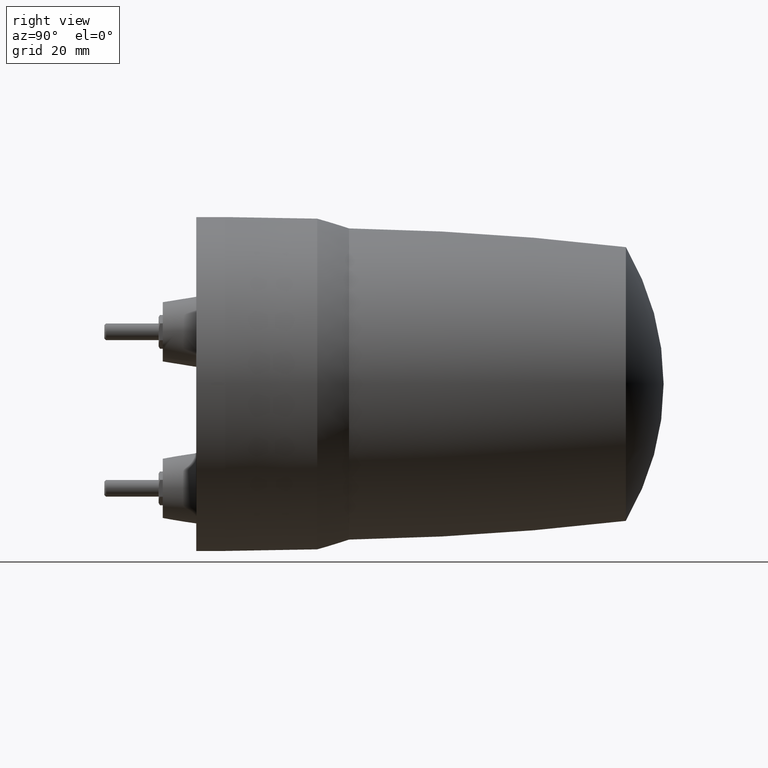
[diagram: clean part render]
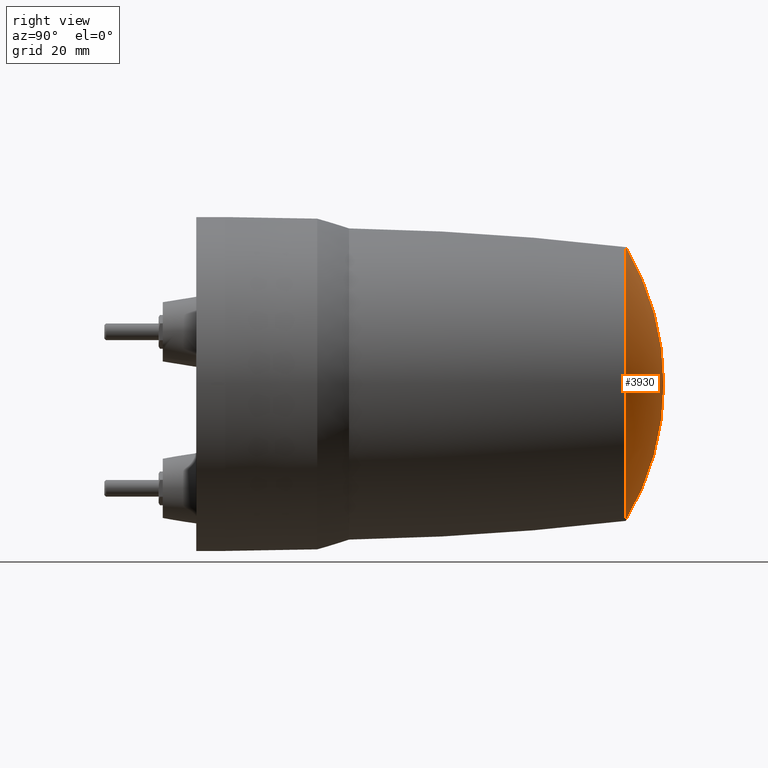
[diagram: same view with one face highlighted and labeled with its STEP entity id]
A machine part, right view. The second image highlights one B-rep face of the part: STEP entity #3930.
In plain terms, the highlighted spherical surface has radius 64 mm.
Its self-contained STEP definition (entity closure, byte-faithful):
#42 = AXIS2_PLACEMENT_3D ( 'NONE', #614, #2441, #958 ) ;
#224 = ORIENTED_EDGE ( 'NONE', *, *, #1370, .F. ) ;
#229 = VERTEX_POINT ( 'NONE', #819 ) ;
#331 = VERTEX_POINT ( 'NONE', #3464 ) ;
#380 = EDGE_LOOP ( 'NONE', ( #224, #2290, #4015, #2267 ) ) ;
#422 = FACE_OUTER_BOUND ( 'NONE', #380, .T. ) ;
#489 = CARTESIAN_POINT ( 'NONE',  ( -5.000000000000000105E-09, 111.9574960022395942, 0.000000000000000000 ) ) ;
#550 = CIRCLE ( 'NONE', #1085, 32.79746382458339582 ) ;
#611 = DIRECTION ( 'NONE',  ( 0.9950041652811341120, -4.231360047240093586E-16, 0.09983341661584822779 ) ) ;
#614 = CARTESIAN_POINT ( 'NONE',  ( -4.111966618341213830E-09, 56.99999999659785743, -2.616512756758935325E-10 ) ) ;
#676 = DIRECTION ( 'NONE',  ( 0.000000000000000000, -1.000000000000000000, 0.000000000000000000 ) ) ;
#819 = CARTESIAN_POINT ( 'NONE',  ( -4.111939281693475977E-09, 121.0000000005986038, -2.616524714083897256E-10 ) ) ;
#913 = CIRCLE ( 'NONE', #3531, 32.79746382458339582 ) ;
#950 = CIRCLE ( 'NONE', #4434, 64.00000000400073930 ) ;
#958 = DIRECTION ( 'NONE',  ( -0.09983341661584835269, 0.000000000000000000, 0.9950041652811342230 ) ) ;
#1085 = AXIS2_PLACEMENT_3D ( 'NONE', #489, #1894, #4378 ) ;
#1094 = CIRCLE ( 'NONE', #42, 64.00000000400073930 ) ;
#1131 = DIRECTION ( 'NONE',  ( -0.9950041652811341120, 4.231360047240093586E-16, -0.09983341661584822779 ) ) ;
#1370 = EDGE_CURVE ( 'NONE', #2679, #229, #1094, .T. ) ;
#1754 = DIRECTION ( 'NONE',  ( 0.09983341664186271003, 0.000000000000000000, -0.9950041652785239776 ) ) ;
#1873 = CARTESIAN_POINT ( 'NONE',  ( -4.251983009644433934E-15, 111.9574960022395942, 32.79746382458340292 ) ) ;
#1894 = DIRECTION ( 'NONE',  ( 0.000000000000000000, -1.000000000000000000, 0.000000000000000000 ) ) ;
#2267 = ORIENTED_EDGE ( 'NONE', *, *, #4511, .T. ) ;
#2290 = ORIENTED_EDGE ( 'NONE', *, *, #2848, .F. ) ;
#2441 = DIRECTION ( 'NONE',  ( -0.9950041652811341120, 4.231360047240093586E-16, -0.09983341661584835269 ) ) ;
#2679 = VERTEX_POINT ( 'NONE', #3783 ) ;
#2848 = EDGE_CURVE ( 'NONE', #3934, #2679, #913, .T. ) ;
#2972 = SPHERICAL_SURFACE ( 'NONE', #3741, 64.00000000400073930 ) ;
#3464 = CARTESIAN_POINT ( 'NONE',  ( 3.274282865796063202, 111.9574960022395942, -32.63361311603222248 ) ) ;
#3531 = AXIS2_PLACEMENT_3D ( 'NONE', #4600, #676, #1754 ) ;
#3741 = AXIS2_PLACEMENT_3D ( 'NONE', #4394, #1131, #3960 ) ;
#3783 = CARTESIAN_POINT ( 'NONE',  ( -3.274282874054796455, 111.9574960022395942, 32.63361311585617841 ) ) ;
#3813 = EDGE_CURVE ( 'NONE', #331, #3934, #550, .T. ) ;
#3930 = ADVANCED_FACE ( 'NONE', ( #422 ), #2972, .T. ) ;
#3934 = VERTEX_POINT ( 'NONE', #1873 ) ;
#3960 = DIRECTION ( 'NONE',  ( 0.09983341661584822779, 0.000000000000000000, -0.9950041652811341120 ) ) ;
#4015 = ORIENTED_EDGE ( 'NONE', *, *, #3813, .F. ) ;
#4057 = CARTESIAN_POINT ( 'NONE',  ( -4.111966618341213830E-09, 56.99999999659785743, -2.616512756758935325E-10 ) ) ;
#4112 = DIRECTION ( 'NONE',  ( 0.09983341661584822779, 0.000000000000000000, -0.9950041652811342230 ) ) ;
#4378 = DIRECTION ( 'NONE',  ( 0.09983341664186271003, 0.000000000000000000, -0.9950041652785239776 ) ) ;
#4394 = CARTESIAN_POINT ( 'NONE',  ( -4.111966618341213830E-09, 56.99999999659785743, -2.616512756758935325E-10 ) ) ;
#4434 = AXIS2_PLACEMENT_3D ( 'NONE', #4057, #611, #4112 ) ;
#4511 = EDGE_CURVE ( 'NONE', #331, #229, #950, .T. ) ;
#4600 = CARTESIAN_POINT ( 'NONE',  ( -5.000000000000000105E-09, 111.9574960022395942, 0.000000000000000000 ) ) ;